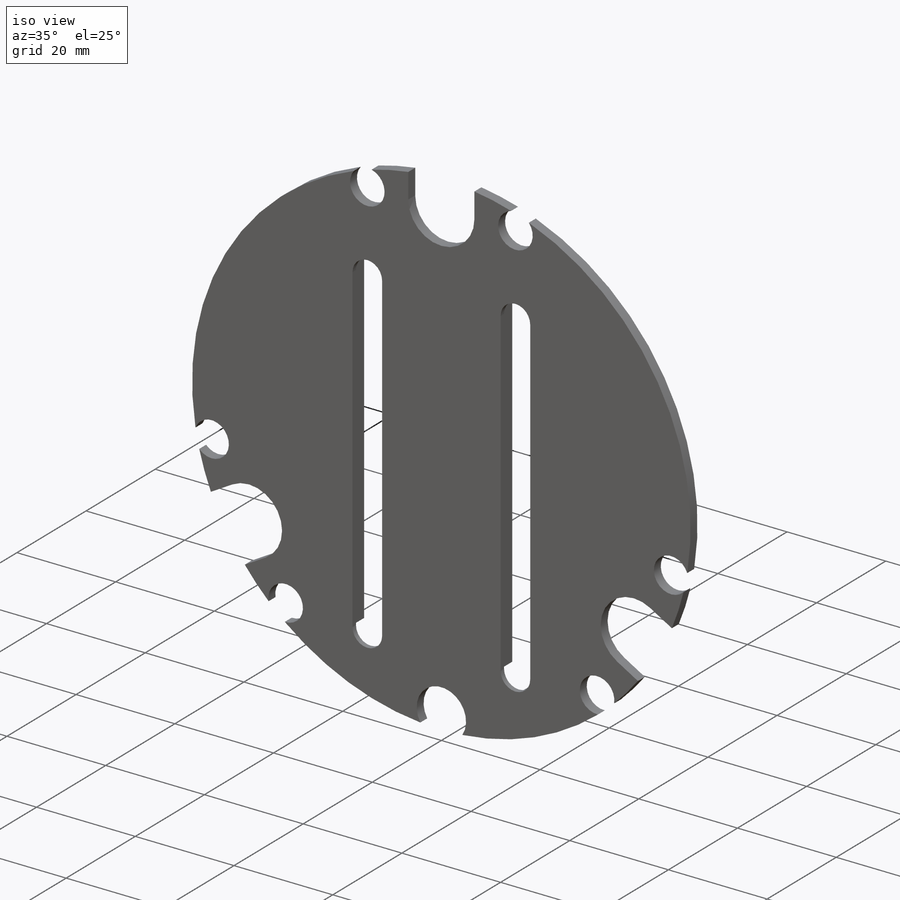
[diagram: iso view]
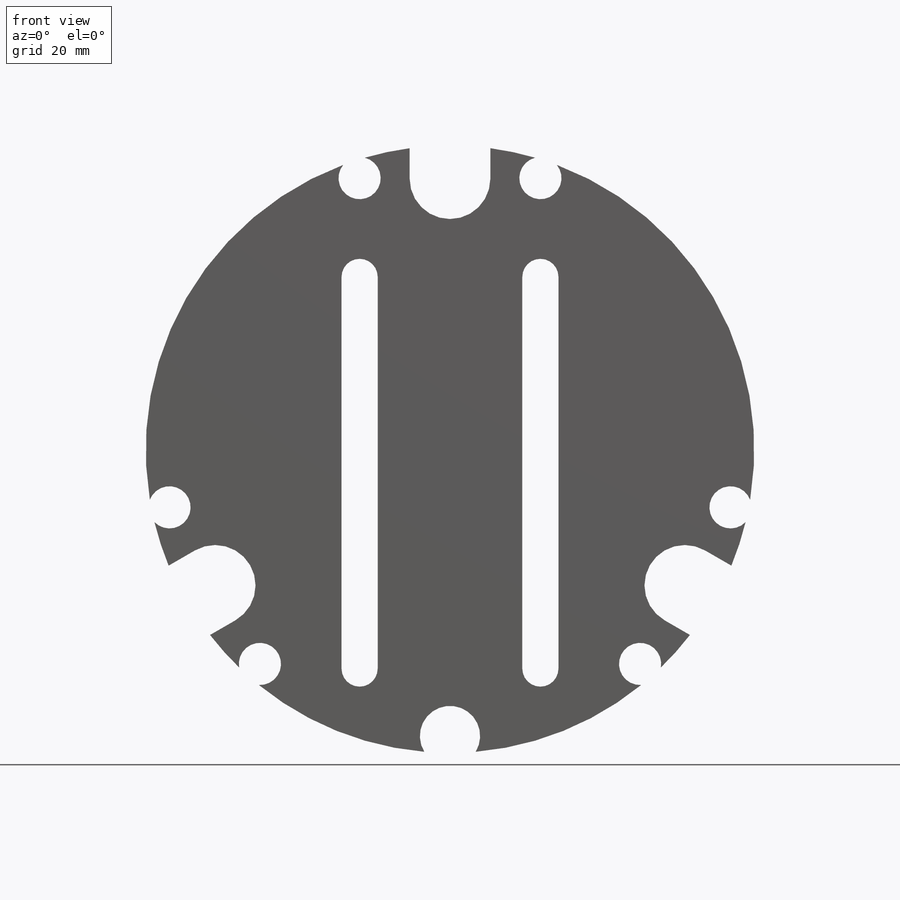
[diagram: front view]
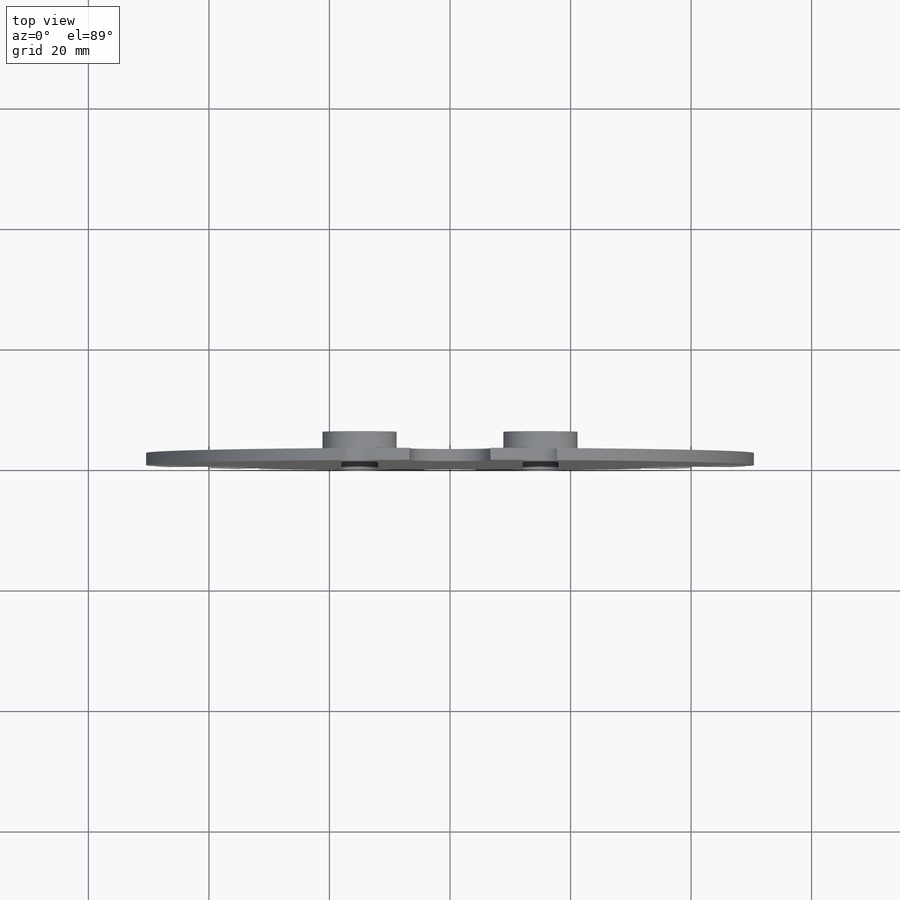
[diagram: top view]
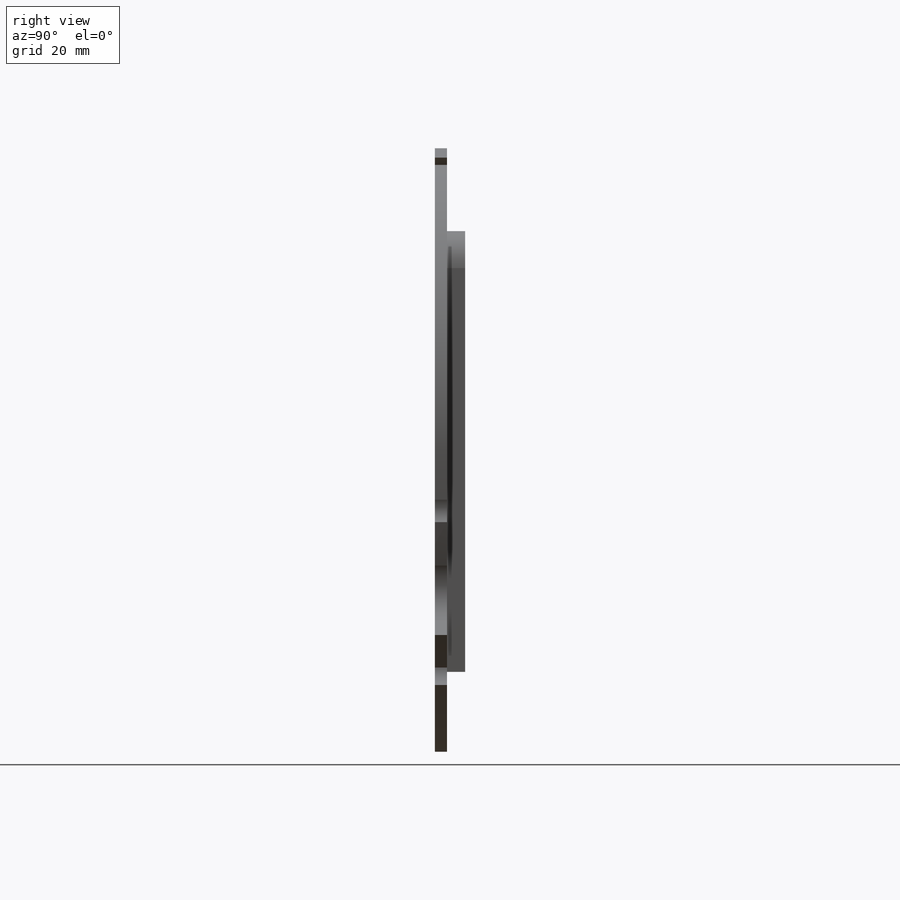
[diagram: right view]
SOLIDWORKS PART (.sldprt)
format: sldprt  version: not decoded by parser v0  size: 595,968 bytes
history: native  units: mm
features: sketch x12, cut_extrude x6, extrude x5, plane x3, fillet x2, material x1 (+9 scaffold rows collapsed)
feature tree (38):
  scaffold x9  (default folders/planes/origin — collapsed)
  material  "Material <sin especificar>"
  plane  "Alzado"
  plane  "Planta"
  plane  "Vista lateral"
  sketch  "Croquis1"  dims[D1=110.0mm D2=105.0mm]
  extrude  "Saliente-Extruir1"  Depth=20mm
  sketch  "Croquis2"  dims[D1=110.0mm]
  extrude  "Saliente-Extruir2"  Depth=5mm
  sketch  "Croquis3"  dims[D1=27.0mm D2=3.0]
  sketch  "Croquis10"  dims[D1=4.5mm D4=4.5mm D2=6.0mm D3=3.0]
  extrude  "Saliente-Extruir8"  Depth=10mm
  sketch  "Croquis12"  dims[D1=95.0mm D2=6.5mm D4=8.5mm D5=5.5mm D6=15.0mm D3=3.0]
  cut_extrude  "Cortar-Extruir4"  Depth=10mm
  sketch  "Croquis16"  dims[D1=5.5mm D3=5.5mm D2=3.0]
  cut_extrude  "Cortar-Extruir7"  Depth=5mm
  sketch  "Croquis21"  dims[D1=0.0mm]
  cut_extrude  "Cortar-Extruir9"  [1 undecoded]
  fillet  "Redondeo2"  Radius=0.2mm
  sketch  "Croquis22"  dims[D1=0.0mm]
  cut_extrude  "Cortar-Extruir10"  [1 undecoded]
  fillet  "Redondeo3"  Radius=0.2mm
  sketch  "Croquis23"  dims[c1.D2=4.7mm c1.D3=7.0mm c1.D4=10.0mm c1.D1=0.0mm c2.D2=2.0mm]
  extrude  "Saliente-Extruir9"  Depth=2mm
  sketch  "Croquis24"  dims[D1=4.15mm D2=15.0mm D3=67.0mm]
  cut_extrude  "Cortar-Extruir11"  Depth=1mm
  sketch  "Croquis25"  dims[c1.D3=3.0mm c1.D1=15.0mm c1.D2=65.0mm c2.D3=67.0mm]
  cut_extrude  "Cortar-Extruir12"  Depth=2mm
  sketch  "Croquis27"  dims[D1=2.0mm]
  extrude  "Saliente-Extruir10"  Depth=3mm
decode coverage: 23 of 25 modeling features carry decoded parameters
note: 2 parameter values undecoded
note: suppression state not decoded; provenance and decode notes live in map.json
